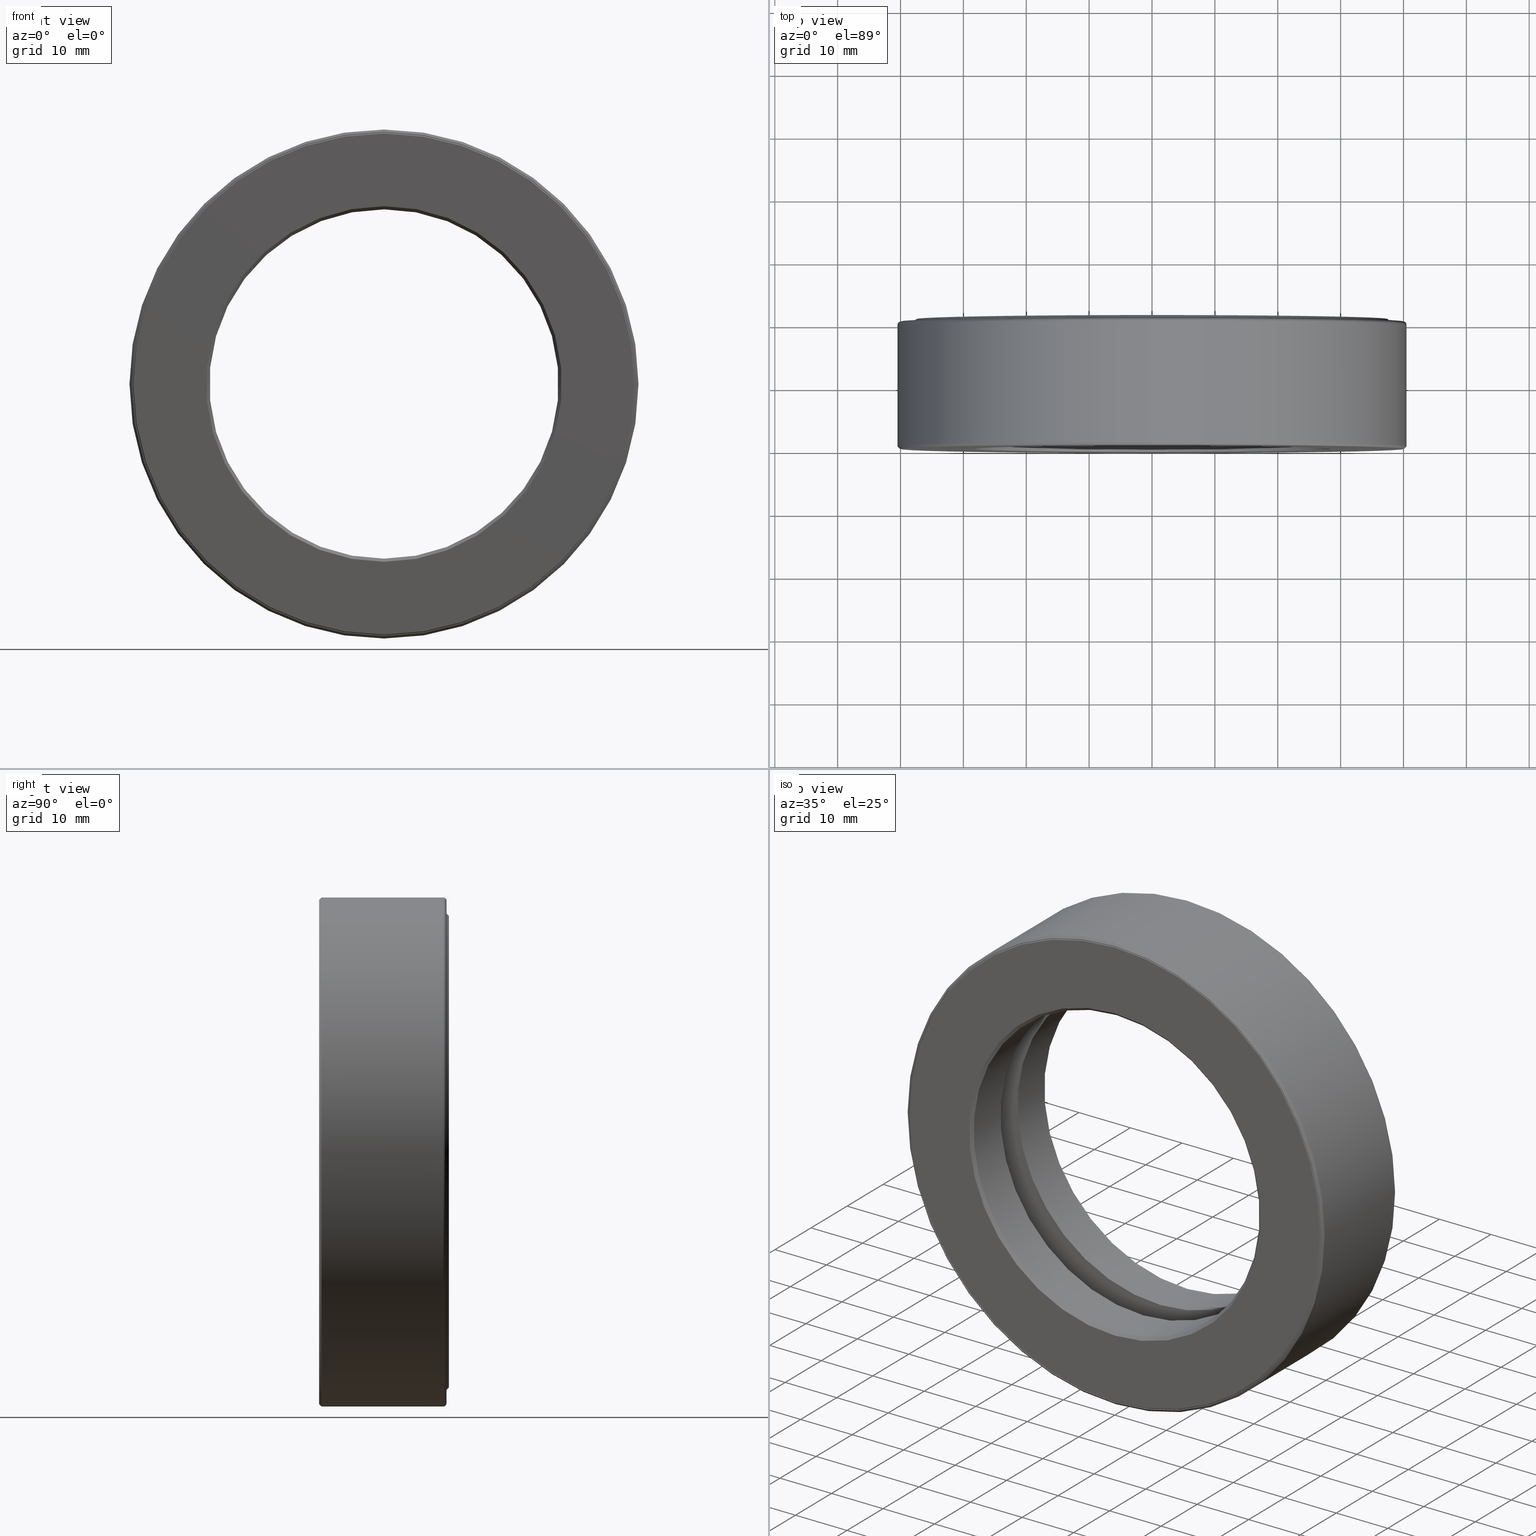
[diagram: canonical four-view strip — front | top / right | iso, engineering-drawing reading convention]
A machine part, canonical four-view strip (front | top / right | iso — engineering-drawing reading convention). The complete STEP part file that produces these views, byte-faithful:
ISO-10303-21;
HEADER;
FILE_DESCRIPTION (( 'STEP AP203' ),
    '1' );
FILE_NAME ('T-100-33.step',
    '2016-06-29T18:27:31',
    ( '' ),
    ( '' ),
    'SwSTEP 2.0',
    'SolidWorks 2016',
    '' );
FILE_SCHEMA (( 'CONFIG_CONTROL_DESIGN' ));
ENDSEC;

DATA;
#1 = DESIGN_CONTEXT ( 'detailed design', #520, 'design' ) ;
#2 = ORIENTED_EDGE ( 'NONE', *, *, #457, .T. ) ;
#3 = CARTESIAN_POINT ( 'NONE',  ( 0.0000000000000000000, 0.4999999999999998300, 1.533500000000000100 ) ) ;
#4 = CARTESIAN_POINT ( 'NONE',  ( 0.0000000000000000000, 0.4062499999999998900, 0.0000000000000000000 ) ) ;
#5 = PERSON_AND_ORGANIZATION_ROLE ( 'creator' ) ;
#6 = VERTEX_POINT ( 'NONE', #525 ) ;
#7 = PLANE ( 'NONE',  #479 ) ;
#8 = CARTESIAN_POINT ( 'NONE',  ( 0.0000000000000000000, 0.3124999999999998900, 1.573749999999999800 ) ) ;
#9 = CARTESIAN_POINT ( 'NONE',  ( 0.0000000000000000000, 0.4999999999999998300, 0.0000000000000000000 ) ) ;
#10 = DIRECTION ( 'NONE',  ( 1.000000000000000000, 0.0000000000000000000, 0.0000000000000000000 ) ) ;
#11 = CYLINDRICAL_SURFACE ( 'NONE', #218, 1.593749999999999600 ) ;
#12 = AXIS2_PLACEMENT_3D ( 'NONE', #358, #177, #501 ) ;
#13 = DIRECTION ( 'NONE',  ( -0.0000000000000000000, 1.000000000000000000, 0.0000000000000000000 ) ) ;
#14 = AXIS2_PLACEMENT_3D ( 'NONE', #556, #278, #326 ) ;
#15 = ORIENTED_EDGE ( 'NONE', *, *, #532, .F. ) ;
#16 = CONICAL_SURFACE ( 'NONE', #375, 1.478749999999999600, 0.7853981633974498300 ) ;
#17 = CARTESIAN_POINT ( 'NONE',  ( 0.0000000000000000000, 0.005000000000000232600, 0.0000000000000000000 ) ) ;
#18 = EDGE_LOOP ( 'NONE', ( #257 ) ) ;
#19 = DIRECTION ( 'NONE',  ( 0.0000000000000000000, 0.0000000000000000000, 1.000000000000000000 ) ) ;
#20 = MANIFOLD_SOLID_BREP ( 'Revolve2[2]', #127 ) ;
#21 = VERTEX_POINT ( 'NONE', #289 ) ;
#22 = LOCAL_TIME ( 14, 27, 31.00000000000000000, #183 ) ;
#23 = ADVANCED_FACE ( 'NONE', ( #291, #188 ), #398, .F. ) ;
#24 = EDGE_LOOP ( 'NONE', ( #269 ) ) ;
#25 = CYLINDRICAL_SURFACE ( 'NONE', #487, 1.093750000000000000 ) ;
#26 = ORIENTED_EDGE ( 'NONE', *, *, #208, .T. ) ;
#27 = AXIS2_PLACEMENT_3D ( 'NONE', #87, #39, #192 ) ;
#28 = CLOSED_SHELL ( 'NONE', ( #174 ) ) ;
#29 = FACE_OUTER_BOUND ( 'NONE', #481, .T. ) ;
#30 = EDGE_LOOP ( 'NONE', ( #361 ) ) ;
#31 = CARTESIAN_POINT ( 'NONE',  ( 0.0000000000000000000, 0.02000000000000046900, 1.093750000000000000 ) ) ;
#32 = ORIENTED_EDGE ( 'NONE', *, *, #457, .F. ) ;
#33 = EDGE_CURVE ( 'NONE', #565, #565, #154, .T. ) ;
#34 = ORIENTED_EDGE ( 'NONE', *, *, #231, .F. ) ;
#35 = DIRECTION ( 'NONE',  ( -0.0000000000000000000, 1.000000000000000000, -0.0000000000000000000 ) ) ;
#36 = AXIS2_PLACEMENT_3D ( 'NONE', #411, #598, #136 ) ;
#37 = PERSON_AND_ORGANIZATION ( #171, #559 ) ;
#38 = ORIENTED_EDGE ( 'NONE', *, *, #423, .T. ) ;
#39 = DIRECTION ( 'NONE',  ( -0.0000000000000000000, 1.000000000000000000, -0.0000000000000000000 ) ) ;
#40 = FACE_OUTER_BOUND ( 'NONE', #224, .T. ) ;
#41 = CARTESIAN_POINT ( 'NONE',  ( 0.0000000000000000000, 0.01499999999999984000, 1.593749999999999300 ) ) ;
#42 = EDGE_LOOP ( 'NONE', ( #164 ) ) ;
#43 = CARTESIAN_POINT ( 'NONE',  ( 0.0000000000000000000, 0.8124999999999998900, 0.0000000000000000000 ) ) ;
#44 = PERSON_AND_ORGANIZATION_ROLE ( 'design_supplier' ) ;
#45 = DATE_AND_TIME ( #112, #373 ) ;
#46 = AXIS2_PLACEMENT_3D ( 'NONE', #439, #304, #444 ) ;
#47 = FACE_OUTER_BOUND ( 'NONE', #305, .T. ) ;
#48 = ADVANCED_FACE ( 'NONE', ( #277, #313 ), #11, .T. ) ;
#49 = CC_DESIGN_APPROVAL ( #120, ( #315 ) ) ;
#50 = ORIENTED_EDGE ( 'NONE', *, *, #85, .T. ) ;
#51 = VERTEX_POINT ( 'NONE', #561 ) ;
#52 = ADVANCED_FACE ( 'NONE', ( ), #509, .T. ) ;
#53 = DIRECTION ( 'NONE',  ( -0.0000000000000000000, 1.000000000000000000, -0.0000000000000000000 ) ) ;
#54 = EDGE_CURVE ( 'NONE', #318, #318, #368, .T. ) ;
#55 = ORIENTED_EDGE ( 'NONE', *, *, #312, .F. ) ;
#56 = SPHERICAL_SURFACE ( 'NONE', #495, 0.1562499999999999700 ) ;
#57 = FACE_OUTER_BOUND ( 'NONE', #527, .T. ) ;
#58 = ADVANCED_FACE ( 'NONE', ( #381, #261 ), #226, .T. ) ;
#59 = DIRECTION ( 'NONE',  ( 0.0000000000000000000, -1.000000000000000000, 0.0000000000000000000 ) ) ;
#60 = COORDINATED_UNIVERSAL_TIME_OFFSET ( 5, 0, .BEHIND. ) ;
#61 = DIRECTION ( 'NONE',  ( -0.0000000000000000000, 1.000000000000000000, -0.0000000000000000000 ) ) ;
#62 = CIRCLE ( 'NONE', #168, 1.513749999999999900 ) ;
#63 = ADVANCED_FACE ( 'NONE', ( #57, #116 ), #251, .F. ) ;
#64 = DIRECTION ( 'NONE',  ( 0.0000000000000000000, 0.0000000000000000000, -1.000000000000000000 ) ) ;
#65 = EDGE_CURVE ( 'NONE', #589, #589, #472, .T. ) ;
#66 = FACE_OUTER_BOUND ( 'NONE', #205, .T. ) ;
#67 = PRODUCT_DEFINITION_SHAPE ( 'NONE', 'NONE',  #356 ) ;
#68 = CARTESIAN_POINT ( 'NONE',  ( 0.0000000000000000000, 0.7924999999999994300, 0.0000000000000000000 ) ) ;
#69 = MANIFOLD_SOLID_BREP ( 'Revolve2[1]', #555 ) ;
#70 = PERSON_AND_ORGANIZATION ( #171, #559 ) ;
#71 = AXIS2_PLACEMENT_3D ( 'NONE', #460, #181, #82 ) ;
#72 = EDGE_LOOP ( 'NONE', ( #557 ) ) ;
#73 = CIRCLE ( 'NONE', #344, 1.566749999999999900 ) ;
#74 = CARTESIAN_POINT ( 'NONE',  ( 0.0000000000000000000, -6.722907171908147400E-017, 1.568749999999999400 ) ) ;
#75 = EDGE_LOOP ( 'NONE', ( #195 ) ) ;
#76 = EDGE_CURVE ( 'NONE', #156, #156, #242, .T. ) ;
#77 = PERSON_AND_ORGANIZATION ( #171, #559 ) ;
#78 = ORIENTED_EDGE ( 'NONE', *, *, #491, .F. ) ;
#79 = DIRECTION ( 'NONE',  ( 0.0000000000000000000, 0.0000000000000000000, 1.000000000000000000 ) ) ;
#80 = DIRECTION ( 'NONE',  ( -0.0000000000000000000, 1.000000000000000000, -0.0000000000000000000 ) ) ;
#81 = DIRECTION ( 'NONE',  ( 0.0000000000000000000, 0.0000000000000000000, 1.000000000000000000 ) ) ;
#82 = DIRECTION ( 'NONE',  ( 0.0000000000000000000, 0.0000000000000000000, 1.000000000000000000 ) ) ;
#83 = CARTESIAN_POINT ( 'NONE',  ( 0.0000000000000000000, 0.0000000000000000000, 0.0000000000000000000 ) ) ;
#84 = FACE_OUTER_BOUND ( 'NONE', #470, .T. ) ;
#85 = EDGE_CURVE ( 'NONE', #90, #90, #351, .T. ) ;
#86 = PLANE ( 'NONE',  #597 ) ;
#87 = CARTESIAN_POINT ( 'NONE',  ( 0.0000000000000000000, 0.7774999999999999700, 0.0000000000000000000 ) ) ;
#88 = MANIFOLD_SOLID_BREP ( 'BALLS[2]', #28 ) ;
#89 = EDGE_LOOP ( 'NONE', ( #546 ) ) ;
#90 = VERTEX_POINT ( 'NONE', #330 ) ;
#91 = CC_DESIGN_DATE_AND_TIME_ASSIGNMENT ( #385, #293, ( #356 ) ) ;
#92 = DIRECTION ( 'NONE',  ( -0.0000000000000000000, 1.000000000000000000, -0.0000000000000000000 ) ) ;
#93 = ADVANCED_FACE ( 'NONE', ( #531, #397 ), #189, .T. ) ;
#94 = DIRECTION ( 'NONE',  ( -0.0000000000000000000, 1.000000000000000000, -0.0000000000000000000 ) ) ;
#95 = FACE_OUTER_BOUND ( 'NONE', #259, .T. ) ;
#96 = APPLICATION_PROTOCOL_DEFINITION ( 'international standard', 'config_control_design', 1994, #155 ) ;
#97 = CARTESIAN_POINT ( 'NONE',  ( 0.0000000000000000000, 0.8124999999999998900, 1.478749999999999600 ) ) ;
#98 = CARTESIAN_POINT ( 'NONE',  ( 0.0000000000000000000, 0.3124999999999998900, 0.0000000000000000000 ) ) ;
#99 = VERTEX_POINT ( 'NONE', #380 ) ;
#100 = DIRECTION ( 'NONE',  ( -1.000000000000000000, 0.0000000000000000000, 3.491481338843131400E-015 ) ) ;
#101 = EDGE_CURVE ( 'NONE', #401, #401, #62, .T. ) ;
#102 = SECURITY_CLASSIFICATION_LEVEL ( 'unclassified' ) ;
#103 = CARTESIAN_POINT ( 'NONE',  ( 0.0000000000000000000, 0.7924999999999994300, 0.0000000000000000000 ) ) ;
#104 = ORIENTED_EDGE ( 'NONE', *, *, #33, .F. ) ;
#105 =( CONVERSION_BASED_UNIT ( 'INCH', #229 ) LENGTH_UNIT ( ) NAMED_UNIT ( #123 ) );
#106 = CARTESIAN_POINT ( 'NONE',  ( -2.431527317371448200E-032, -3.361453585954073700E-017, 0.0000000000000000000 ) ) ;
#107 = CONICAL_SURFACE ( 'NONE', #233, 1.093750000000000000, 0.7853981633974449500 ) ;
#108 = EDGE_LOOP ( 'NONE', ( #186 ) ) ;
#109 = CARTESIAN_POINT ( 'NONE',  ( 0.0000000000000000000, -6.781474164570169800E-017, 0.0000000000000000000 ) ) ;
#110 = CYLINDRICAL_SURFACE ( 'NONE', #386, 1.093750000000000200 ) ;
#111 = DIRECTION ( 'NONE',  ( 0.0000000000000000000, -1.000000000000000000, 0.0000000000000000000 ) ) ;
#112 = CALENDAR_DATE ( 2016, 29, 6 ) ;
#113 = DIRECTION ( 'NONE',  ( 0.0000000000000000000, -0.0000000000000000000, -1.000000000000000000 ) ) ;
#114 = FACE_OUTER_BOUND ( 'NONE', #534, .T. ) ;
#115 = DIRECTION ( 'NONE',  ( -0.0000000000000000000, 1.000000000000000000, -0.0000000000000000000 ) ) ;
#116 = FACE_OUTER_BOUND ( 'NONE', #523, .T. ) ;
#117 = DIRECTION ( 'NONE',  ( 0.0000000000000000000, 0.0000000000000000000, 1.000000000000000000 ) ) ;
#118 = VERTEX_POINT ( 'NONE', #3 ) ;
#119 = DIRECTION ( 'NONE',  ( 0.0000000000000000000, 0.0000000000000000000, 1.000000000000000000 ) ) ;
#120 = APPROVAL ( #146, 'UNSPECIFIED' ) ;
#121 = ADVANCED_FACE ( 'NONE', ( #498, #217 ), #7, .F. ) ;
#122 = EDGE_LOOP ( 'NONE', ( #211 ) ) ;
#123 = DIMENSIONAL_EXPONENTS ( 1.000000000000000000, 0.0000000000000000000, 0.0000000000000000000, 0.0000000000000000000, 0.0000000000000000000, 0.0000000000000000000, 0.0000000000000000000 ) ;
#124 = AXIS2_PLACEMENT_3D ( 'NONE', #483, #100, #379 ) ;
#125 = FACE_OUTER_BOUND ( 'NONE', #89, .T. ) ;
#126 = APPROVAL ( #333, 'UNSPECIFIED' ) ;
#127 = CLOSED_SHELL ( 'NONE', ( #345, #63, #390, #578, #348, #93, #475, #434 ) ) ;
#128 = FACE_OUTER_BOUND ( 'NONE', #396, .T. ) ;
#129 = AXIS2_PLACEMENT_3D ( 'NONE', #68, #447, #306 ) ;
#130 = EDGE_LOOP ( 'NONE', ( #451 ) ) ;
#131 = CARTESIAN_POINT ( 'NONE',  ( 0.0000000000000000000, 0.7775000000000000800, 1.573749999999999800 ) ) ;
#132 = FACE_BOUND ( 'NONE', #324, .T. ) ;
#133 = AXIS2_PLACEMENT_3D ( 'NONE', #602, #92, #337 ) ;
#134 = FACE_OUTER_BOUND ( 'NONE', #548, .T. ) ;
#135 = AXIS2_PLACEMENT_3D ( 'NONE', #106, #13, #300 ) ;
#136 = DIRECTION ( 'NONE',  ( 0.0000000000000000000, 0.0000000000000000000, 1.000000000000000000 ) ) ;
#137 = DIRECTION ( 'NONE',  ( 6.982962677686262800E-015, -0.0000000000000000000, 1.000000000000000000 ) ) ;
#138 = LOCAL_TIME ( 14, 27, 31.00000000000000000, #149 ) ;
#139 = DIRECTION ( 'NONE',  ( 0.0000000000000000000, 0.0000000000000000000, 1.000000000000000000 ) ) ;
#140 = CLOSED_SHELL ( 'NONE', ( #249 ) ) ;
#141 = FACE_OUTER_BOUND ( 'NONE', #549, .T. ) ;
#142 = CARTESIAN_POINT ( 'NONE',  ( 0.0000000000000000000, 0.7775000000000000800, 0.0000000000000000000 ) ) ;
#143 = ORIENTED_EDGE ( 'NONE', *, *, #237, .F. ) ;
#144 = CARTESIAN_POINT ( 'NONE',  ( 0.0000000000000000000, 0.4999999999999998300, 1.093750000000000200 ) ) ;
#145 = PLANE ( 'NONE',  #360 ) ;
#146 = APPROVAL_STATUS ( 'not_yet_approved' ) ;
#147 = VERTEX_POINT ( 'NONE', #477 ) ;
#148 = DIRECTION ( 'NONE',  ( -0.0000000000000000000, 1.000000000000000000, 0.0000000000000000000 ) ) ;
#149 = COORDINATED_UNIVERSAL_TIME_OFFSET ( 5, 0, .BEHIND. ) ;
#150 = CLOSED_SHELL ( 'NONE', ( #331 ) ) ;
#151 = SECURITY_CLASSIFICATION ( '', '', #102 ) ;
#152 = FACE_OUTER_BOUND ( 'NONE', #433, .T. ) ;
#153 = DIRECTION ( 'NONE',  ( -0.0000000000000000000, 1.000000000000000000, -0.0000000000000000000 ) ) ;
#154 = CIRCLE ( 'NONE', #590, 1.566749999999999900 ) ;
#155 = APPLICATION_CONTEXT ( 'configuration controlled 3d designs of mechanical parts and assemblies' ) ;
#156 = VERTEX_POINT ( 'NONE', #41 ) ;
#157 = DIRECTION ( 'NONE',  ( -0.0000000000000000000, 1.000000000000000000, -0.0000000000000000000 ) ) ;
#158 = AXIS2_PLACEMENT_3D ( 'NONE', #292, #384, #435 ) ;
#159 = CARTESIAN_POINT ( 'NONE',  ( 0.0000000000000000000, 0.7975000000000002100, 0.0000000000000000000 ) ) ;
#160 = MANIFOLD_SOLID_BREP ( 'BALLS[1]', #140 ) ;
#161 = CYLINDRICAL_SURFACE ( 'NONE', #163, 1.566749999999999900 ) ;
#162 = DIRECTION ( 'NONE',  ( 0.0000000000000000000, 0.0000000000000000000, 1.000000000000000000 ) ) ;
#163 = AXIS2_PLACEMENT_3D ( 'NONE', #258, #494, #262 ) ;
#164 = ORIENTED_EDGE ( 'NONE', *, *, #268, .T. ) ;
#165 = DIRECTION ( 'NONE',  ( -0.0000000000000000000, 1.000000000000000000, -0.0000000000000000000 ) ) ;
#166 = DIRECTION ( 'NONE',  ( 0.0000000000000000000, -1.000000000000000000, 0.0000000000000000000 ) ) ;
#167 = PLANE ( 'NONE',  #263 ) ;
#168 = AXIS2_PLACEMENT_3D ( 'NONE', #243, #94, #239 ) ;
#169 = ORIENTED_EDGE ( 'NONE', *, *, #33, .T. ) ;
#170 = DIRECTION ( 'NONE',  ( 0.0000000000000000000, 0.0000000000000000000, 1.000000000000000000 ) ) ;
#171 = PERSON ( 'UNSPECIFIED', 'UNSPECIFIED', 'UNSPECIFIED', ('UNSPECIFIED'), ('UNSPECIFIED'), ('UNSPECIFIED') ) ;
#172 = APPROVAL_DATE_TIME ( #394, #120 ) ;
#173 = ORIENTED_EDGE ( 'NONE', *, *, #395, .F. ) ;
#174 = ADVANCED_FACE ( 'NONE', ( ), #280, .T. ) ;
#175 = FACE_BOUND ( 'NONE', #506, .T. ) ;
#176 = EDGE_LOOP ( 'NONE', ( #143 ) ) ;
#177 = DIRECTION ( 'NONE',  ( -0.0000000000000000000, 1.000000000000000000, -0.0000000000000000000 ) ) ;
#178 = CALENDAR_DATE ( 2016, 29, 6 ) ;
#179 = FACE_OUTER_BOUND ( 'NONE', #18, .T. ) ;
#180 = EDGE_LOOP ( 'NONE', ( #55 ) ) ;
#181 = DIRECTION ( 'NONE',  ( -0.0000000000000000000, 1.000000000000000000, -0.0000000000000000000 ) ) ;
#182 = CIRCLE ( 'NONE', #12, 1.113750000000000500 ) ;
#183 = COORDINATED_UNIVERSAL_TIME_OFFSET ( 5, 0, .BEHIND. ) ;
#184 = EDGE_LOOP ( 'NONE', ( #255 ) ) ;
#185 = AXIS2_PLACEMENT_3D ( 'NONE', #109, #576, #252 ) ;
#186 = ORIENTED_EDGE ( 'NONE', *, *, #524, .T. ) ;
#187 = FACE_OUTER_BOUND ( 'NONE', #500, .T. ) ;
#188 = FACE_OUTER_BOUND ( 'NONE', #275, .T. ) ;
#189 = PLANE ( 'NONE',  #363 ) ;
#190 = AXIS2_PLACEMENT_3D ( 'NONE', #496, #541, #210 ) ;
#191 = CARTESIAN_POINT ( 'NONE',  ( 0.0000000000000000000, 0.4999999999999998300, 1.566749999999999900 ) ) ;
#192 = DIRECTION ( 'NONE',  ( 0.0000000000000000000, 0.0000000000000000000, 1.000000000000000000 ) ) ;
#193 = COORDINATED_UNIVERSAL_TIME_OFFSET ( 5, 0, .BEHIND. ) ;
#194 = CARTESIAN_POINT ( 'NONE',  ( 1.408500000000000100, 0.4062499999999997800, -9.835502931521106100E-015 ) ) ;
#195 = ORIENTED_EDGE ( 'NONE', *, *, #268, .F. ) ;
#196 = CIRCLE ( 'NONE', #129, 1.093750000000000200 ) ;
#197 = DIRECTION ( 'NONE',  ( 0.0000000000000000000, -0.0000000000000000000, -1.000000000000000000 ) ) ;
#198 = DIRECTION ( 'NONE',  ( 0.0000000000000000000, 0.0000000000000000000, 1.000000000000000000 ) ) ;
#199 = VERTEX_POINT ( 'NONE', #266 ) ;
#200 = APPLICATION_PROTOCOL_DEFINITION ( 'international standard', 'config_control_design', 1994, #520 ) ;
#201 = ADVANCED_FACE ( 'NONE', ( #537, #40 ), #570, .T. ) ;
#202 = DIRECTION ( 'NONE',  ( 0.0000000000000000000, 0.0000000000000000000, 1.000000000000000000 ) ) ;
#203 = EDGE_LOOP ( 'NONE', ( #265 ) ) ;
#204 = CIRCLE ( 'NONE', #185, 1.573749999999999800 ) ;
#205 = EDGE_LOOP ( 'NONE', ( #173 ) ) ;
#206 = ADVANCED_FACE ( 'NONE', ( #478, #179 ), #471, .F. ) ;
#207 = PLANE ( 'NONE',  #135 ) ;
#208 = EDGE_CURVE ( 'NONE', #245, #245, #550, .T. ) ;
#209 = PERSON_AND_ORGANIZATION ( #171, #559 ) ;
#210 = DIRECTION ( 'NONE',  ( 0.0000000000000000000, 0.0000000000000000000, 1.000000000000000000 ) ) ;
#211 = ORIENTED_EDGE ( 'NONE', *, *, #453, .F. ) ;
#212 = DIRECTION ( 'NONE',  ( 0.0000000000000000000, -1.000000000000000000, 0.0000000000000000000 ) ) ;
#213 = FACE_OUTER_BOUND ( 'NONE', #404, .T. ) ;
#214 = DIRECTION ( 'NONE',  ( -0.0000000000000000000, 1.000000000000000000, 0.0000000000000000000 ) ) ;
#215 = CC_DESIGN_APPROVAL ( #452, ( #356 ) ) ;
#216 = ADVANCED_FACE ( 'NONE', ( #586, #187 ), #145, .F. ) ;
#217 = FACE_BOUND ( 'NONE', #420, .T. ) ;
#218 = AXIS2_PLACEMENT_3D ( 'NONE', #83, #462, #364 ) ;
#219 = CARTESIAN_POINT ( 'NONE',  ( 0.0000000000000000000, 0.7975000000000002100, 1.513749999999999900 ) ) ;
#220 = EDGE_LOOP ( 'NONE', ( #539 ) ) ;
#221 = CARTESIAN_POINT ( 'NONE',  ( 0.0000000000000000000, 0.3124999999999998900, 0.0000000000000000000 ) ) ;
#222 = VERTEX_POINT ( 'NONE', #522 ) ;
#223 = PERSON_AND_ORGANIZATION ( #171, #559 ) ;
#224 = EDGE_LOOP ( 'NONE', ( #2 ) ) ;
#225 = SPHERICAL_SURFACE ( 'NONE', #124, 0.1562499999999999700 ) ;
#226 = CONICAL_SURFACE ( 'NONE', #253, 1.568749999999999400, 0.7853981633974812500 ) ;
#227 = CARTESIAN_POINT ( 'NONE',  ( -1.475325439728165900E-014, 0.4062499999999997800, -1.408500000000000100 ) ) ;
#228 = DIRECTION ( 'NONE',  ( 0.0000000000000000000, -0.0000000000000000000, -1.000000000000000000 ) ) ;
#229 = LENGTH_MEASURE_WITH_UNIT ( LENGTH_MEASURE( 0.02539999999999999900 ), #241 );
#230 = CARTESIAN_POINT ( 'NONE',  ( 0.0000000000000000000, -6.722907171908147400E-017, 0.0000000000000000000 ) ) ;
#231 = EDGE_CURVE ( 'NONE', #393, #393, #366, .T. ) ;
#232 = CARTESIAN_POINT ( 'NONE',  ( 0.0000000000000000000, -6.829619984160658000E-017, 0.0000000000000000000 ) ) ;
#233 = AXIS2_PLACEMENT_3D ( 'NONE', #347, #59, #391 ) ;
#234 = CARTESIAN_POINT ( 'NONE',  ( 0.0000000000000000000, 0.0000000000000000000, 0.0000000000000000000 ) ) ;
#235 = FACE_OUTER_BOUND ( 'NONE', #593, .T. ) ;
#236 = CARTESIAN_POINT ( 'NONE',  ( 0.0000000000000000000, 0.3125000000000000000, 1.283499999999999900 ) ) ;
#237 = EDGE_CURVE ( 'NONE', #222, #222, #311, .T. ) ;
#238 = ORIENTED_EDGE ( 'NONE', *, *, #319, .T. ) ;
#239 = DIRECTION ( 'NONE',  ( 0.0000000000000000000, 0.0000000000000000000, 1.000000000000000000 ) ) ;
#240 = FACE_OUTER_BOUND ( 'NONE', #220, .T. ) ;
#241 =( LENGTH_UNIT ( ) NAMED_UNIT ( * ) SI_UNIT ( $, .METRE. ) );
#242 = CIRCLE ( 'NONE', #133, 1.593749999999999300 ) ;
#243 = CARTESIAN_POINT ( 'NONE',  ( 0.0000000000000000000, 0.7775000000000000800, 0.0000000000000000000 ) ) ;
#244 =( NAMED_UNIT ( * ) SI_UNIT ( $, .STERADIAN. ) SOLID_ANGLE_UNIT ( ) );
#245 = VERTEX_POINT ( 'NONE', #144 ) ;
#246 = PRODUCT ( 'T-100-33', 'T-100-33', '', ( #338 ) ) ;
#247 = CC_DESIGN_APPROVAL ( #126, ( #151 ) ) ;
#248 = FACE_OUTER_BOUND ( 'NONE', #514, .T. ) ;
#249 = ADVANCED_FACE ( 'NONE', ( ), #225, .T. ) ;
#250 = PERSON_AND_ORGANIZATION_ROLE ( 'design_owner' ) ;
#251 = TOROIDAL_SURFACE ( 'NONE', #558, 1.408500000000000100, 0.1562500000000001400 ) ;
#252 = DIRECTION ( 'NONE',  ( 0.0000000000000000000, 0.0000000000000000000, 1.000000000000000000 ) ) ;
#253 = AXIS2_PLACEMENT_3D ( 'NONE', #230, #456, #81 ) ;
#254 = DIRECTION ( 'NONE',  ( 1.000000000000000000, 0.0000000000000000000, 0.0000000000000000000 ) ) ;
#255 = ORIENTED_EDGE ( 'NONE', *, *, #510, .F. ) ;
#256 = CIRCLE ( 'NONE', #585, 1.113750000000000500 ) ;
#257 = ORIENTED_EDGE ( 'NONE', *, *, #65, .T. ) ;
#258 = CARTESIAN_POINT ( 'NONE',  ( 0.0000000000000000000, 0.0000000000000000000, 0.0000000000000000000 ) ) ;
#259 = EDGE_LOOP ( 'NONE', ( #572 ) ) ;
#260 = FACE_OUTER_BOUND ( 'NONE', #416, .T. ) ;
#261 = FACE_BOUND ( 'NONE', #296, .T. ) ;
#262 = DIRECTION ( 'NONE',  ( 0.0000000000000000000, 0.0000000000000000000, 1.000000000000000000 ) ) ;
#263 = AXIS2_PLACEMENT_3D ( 'NONE', #308, #166, #113 ) ;
#264 = VERTEX_POINT ( 'NONE', #131 ) ;
#265 = ORIENTED_EDGE ( 'NONE', *, *, #65, .F. ) ;
#266 = CARTESIAN_POINT ( 'NONE',  ( 0.0000000000000000000, -6.781474164570169800E-017, 1.573749999999999800 ) ) ;
#267 = FACE_BOUND ( 'NONE', #600, .T. ) ;
#268 = EDGE_CURVE ( 'NONE', #51, #51, #563, .T. ) ;
#269 = ORIENTED_EDGE ( 'NONE', *, *, #510, .T. ) ;
#270 = VERTEX_POINT ( 'NONE', #8 ) ;
#271 = COORDINATED_UNIVERSAL_TIME_OFFSET ( 5, 0, .BEHIND. ) ;
#272 = EDGE_LOOP ( 'NONE', ( #562 ) ) ;
#273 = DIRECTION ( 'NONE',  ( -0.0000000000000000000, 1.000000000000000000, -0.0000000000000000000 ) ) ;
#274 = DIRECTION ( 'NONE',  ( 1.000000000000000000, 0.0000000000000000000, -1.047444401652939400E-014 ) ) ;
#275 = EDGE_LOOP ( 'NONE', ( #343 ) ) ;
#276 = FACE_BOUND ( 'NONE', #507, .T. ) ;
#277 = FACE_OUTER_BOUND ( 'NONE', #349, .T. ) ;
#278 = DIRECTION ( 'NONE',  ( -0.0000000000000000000, 1.000000000000000000, -0.0000000000000000000 ) ) ;
#279 = ORIENTED_EDGE ( 'NONE', *, *, #312, .T. ) ;
#280 = SPHERICAL_SURFACE ( 'NONE', #543, 0.1562499999999999700 ) ;
#281 = DIRECTION ( 'NONE',  ( -0.0000000000000000000, 1.000000000000000000, -0.0000000000000000000 ) ) ;
#282 = ORIENTED_EDGE ( 'NONE', *, *, #532, .T. ) ;
#283 = CC_DESIGN_SECURITY_CLASSIFICATION ( #151, ( #315 ) ) ;
#284 = CARTESIAN_POINT ( 'NONE',  ( 0.0000000000000000000, 0.0000000000000000000, 1.113750000000000500 ) ) ;
#285 = DIRECTION ( 'NONE',  ( 0.0000000000000000000, -1.000000000000000000, 0.0000000000000000000 ) ) ;
#286 = ORIENTED_EDGE ( 'NONE', *, *, #101, .F. ) ;
#287 = DIRECTION ( 'NONE',  ( 0.0000000000000000000, 0.0000000000000000000, 1.000000000000000000 ) ) ;
#288 = CIRCLE ( 'NONE', #427, 1.513749999999999900 ) ;
#289 = CARTESIAN_POINT ( 'NONE',  ( 0.0000000000000000000, 0.7774999999999999700, 1.593750000000000000 ) ) ;
#290 = PLANE ( 'NONE',  #583 ) ;
#291 = FACE_OUTER_BOUND ( 'NONE', #180, .T. ) ;
#292 = CARTESIAN_POINT ( 'NONE',  ( 0.0000000000000000000, 0.3125000000000000000, 0.0000000000000000000 ) ) ;
#293 = DATE_TIME_ROLE ( 'creation_date' ) ;
#294 = APPROVAL_PERSON_ORGANIZATION ( #521, #120, #564 ) ;
#295 = CARTESIAN_POINT ( 'NONE',  ( 0.0000000000000000000, 0.4999999999999998300, 0.0000000000000000000 ) ) ;
#296 = EDGE_LOOP ( 'NONE', ( #38 ) ) ;
#297 = CIRCLE ( 'NONE', #497, 1.573749999999999800 ) ;
#298 = DIRECTION ( 'NONE',  ( 0.0000000000000000000, 0.0000000000000000000, 1.000000000000000000 ) ) ;
#299 = ORIENTED_EDGE ( 'NONE', *, *, #208, .F. ) ;
#300 = DIRECTION ( 'NONE',  ( 0.0000000000000000000, 0.0000000000000000000, 1.000000000000000000 ) ) ;
#301 = EDGE_CURVE ( 'NONE', #519, #519, #73, .T. ) ;
#302 = DIRECTION ( 'NONE',  ( -0.0000000000000000000, 1.000000000000000000, -0.0000000000000000000 ) ) ;
#303 = CALENDAR_DATE ( 2016, 29, 6 ) ;
#304 = DIRECTION ( 'NONE',  ( -0.0000000000000000000, 1.000000000000000000, -0.0000000000000000000 ) ) ;
#305 = EDGE_LOOP ( 'NONE', ( #78 ) ) ;
#306 = DIRECTION ( 'NONE',  ( 0.0000000000000000000, 0.0000000000000000000, 1.000000000000000000 ) ) ;
#307 = EDGE_LOOP ( 'NONE', ( #410 ) ) ;
#308 = CARTESIAN_POINT ( 'NONE',  ( 0.0000000000000000000, 0.4999999999999998300, 0.0000000000000000000 ) ) ;
#309 = LOCAL_TIME ( 14, 27, 31.00000000000000000, #193 ) ;
#310 = EDGE_LOOP ( 'NONE', ( #402 ) ) ;
#311 = CIRCLE ( 'NONE', #403, 1.573750000000000200 ) ;
#312 = EDGE_CURVE ( 'NONE', #199, #199, #204, .T. ) ;
#313 = FACE_OUTER_BOUND ( 'NONE', #72, .T. ) ;
#314 = DIRECTION ( 'NONE',  ( -0.0000000000000000000, 1.000000000000000000, -0.0000000000000000000 ) ) ;
#315 = PRODUCT_DEFINITION_FORMATION_WITH_SPECIFIED_SOURCE ( 'ANY', '', #246, .NOT_KNOWN. ) ;
#316 = ORIENTED_EDGE ( 'NONE', *, *, #599, .T. ) ;
#317 = DIRECTION ( 'NONE',  ( -0.0000000000000000000, 1.000000000000000000, -0.0000000000000000000 ) ) ;
#318 = VERTEX_POINT ( 'NONE', #31 ) ;
#319 = EDGE_CURVE ( 'NONE', #415, #415, #288, .T. ) ;
#320 = DIRECTION ( 'NONE',  ( -0.0000000000000000000, 1.000000000000000000, -0.0000000000000000000 ) ) ;
#321 = CALENDAR_DATE ( 2016, 29, 6 ) ;
#322 = ORIENTED_EDGE ( 'NONE', *, *, #453, .T. ) ;
#323 = AXIS2_PLACEMENT_3D ( 'NONE', #352, #61, #117 ) ;
#324 = EDGE_LOOP ( 'NONE', ( #50 ) ) ;
#325 = AXIS2_PLACEMENT_3D ( 'NONE', #579, #214, #170 ) ;
#326 = DIRECTION ( 'NONE',  ( 0.0000000000000000000, 0.0000000000000000000, 1.000000000000000000 ) ) ;
#327 = DATE_TIME_ROLE ( 'classification_date' ) ;
#328 = DATE_AND_TIME ( #425, #309 ) ;
#329 = AXIS2_PLACEMENT_3D ( 'NONE', #227, #274, #596 ) ;
#330 = CARTESIAN_POINT ( 'NONE',  ( 0.0000000000000000000, -6.829619984160658000E-017, 1.578749999999999900 ) ) ;
#331 = ADVANCED_FACE ( 'NONE', ( ), #56, .T. ) ;
#332 = CLOSED_SHELL ( 'NONE', ( #52 ) ) ;
#333 = APPROVAL_STATUS ( 'not_yet_approved' ) ;
#334 = FACE_OUTER_BOUND ( 'NONE', #42, .T. ) ;
#335 = CARTESIAN_POINT ( 'NONE',  ( 0.0000000000000000000, -6.829619984160658000E-017, 0.0000000000000000000 ) ) ;
#336 = PERSON_AND_ORGANIZATION_ROLE ( 'classification_officer' ) ;
#337 = DIRECTION ( 'NONE',  ( 0.0000000000000000000, 0.0000000000000000000, 1.000000000000000000 ) ) ;
#338 = MECHANICAL_CONTEXT ( 'NONE', #155, 'mechanical' ) ;
#339 = ADVANCED_FACE ( 'NONE', ( #84, #418 ), #207, .F. ) ;
#340 = DIRECTION ( 'NONE',  ( 0.0000000000000000000, -1.000000000000000000, 0.0000000000000000000 ) ) ;
#341 = CARTESIAN_POINT ( 'NONE',  ( 0.0000000000000000000, 0.3124999999999998900, 1.533500000000000100 ) ) ;
#342 = DIRECTION ( 'NONE',  ( 0.0000000000000000000, -0.0000000000000000000, -1.000000000000000000 ) ) ;
#343 = ORIENTED_EDGE ( 'NONE', *, *, #237, .T. ) ;
#344 = AXIS2_PLACEMENT_3D ( 'NONE', #295, #153, #298 ) ;
#345 = ADVANCED_FACE ( 'NONE', ( #175, #405 ), #290, .T. ) ;
#346 = DIRECTION ( 'NONE',  ( -0.0000000000000000000, 1.000000000000000000, -0.0000000000000000000 ) ) ;
#347 = CARTESIAN_POINT ( 'NONE',  ( 0.0000000000000000000, 0.02000000000000046900, 0.0000000000000000000 ) ) ;
#348 = ADVANCED_FACE ( 'NONE', ( #152, #455 ), #443, .F. ) ;
#349 = EDGE_LOOP ( 'NONE', ( #32 ) ) ;
#350 = CARTESIAN_POINT ( 'NONE',  ( 0.0000000000000000000, 0.4999999999999998300, 0.0000000000000000000 ) ) ;
#351 = CIRCLE ( 'NONE', #449, 1.578749999999999900 ) ;
#352 = CARTESIAN_POINT ( 'NONE',  ( 0.0000000000000000000, -6.722907171908147400E-017, 0.0000000000000000000 ) ) ;
#353 = DIRECTION ( 'NONE',  ( -0.0000000000000000000, 1.000000000000000000, -0.0000000000000000000 ) ) ;
#354 = EDGE_CURVE ( 'NONE', #264, #264, #297, .T. ) ;
#355 = ORIENTED_EDGE ( 'NONE', *, *, #301, .F. ) ;
#356 = PRODUCT_DEFINITION ( 'UNKNOWN', '', #315, #1 ) ;
#357 = CIRCLE ( 'NONE', #36, 1.533500000000000100 ) ;
#358 = CARTESIAN_POINT ( 'NONE',  ( 0.0000000000000000000, 0.0000000000000000000, 0.0000000000000000000 ) ) ;
#359 = CYLINDRICAL_SURFACE ( 'NONE', #408, 1.513749999999999900 ) ;
#360 = AXIS2_PLACEMENT_3D ( 'NONE', #98, #111, #573 ) ;
#361 = ORIENTED_EDGE ( 'NONE', *, *, #354, .F. ) ;
#362 = DIRECTION ( 'NONE',  ( 0.0000000000000000000, 0.0000000000000000000, 1.000000000000000000 ) ) ;
#363 = AXIS2_PLACEMENT_3D ( 'NONE', #43, #374, #287 ) ;
#364 = DIRECTION ( 'NONE',  ( 0.0000000000000000000, 0.0000000000000000000, 1.000000000000000000 ) ) ;
#365 = CC_DESIGN_PERSON_AND_ORGANIZATION_ASSIGNMENT ( #484, #5, ( #315 ) ) ;
#366 = CIRCLE ( 'NONE', #392, 1.478749999999999600 ) ;
#367 = DIRECTION ( 'NONE',  ( 0.0000000000000000000, 0.0000000000000000000, 1.000000000000000000 ) ) ;
#368 = CIRCLE ( 'NONE', #371, 1.093750000000000000 ) ;
#369 = DIRECTION ( 'NONE',  ( -1.000000000000000000, 0.0000000000000000000, 6.982962677686262800E-015 ) ) ;
#370 = FACE_BOUND ( 'NONE', #75, .T. ) ;
#371 = AXIS2_PLACEMENT_3D ( 'NONE', #378, #281, #424 ) ;
#372 = CARTESIAN_POINT ( 'NONE',  ( 0.0000000000000000000, 0.4062499999999998900, 0.0000000000000000000 ) ) ;
#373 = LOCAL_TIME ( 14, 27, 31.00000000000000000, #60 ) ;
#374 = DIRECTION ( 'NONE',  ( -0.0000000000000000000, 1.000000000000000000, 0.0000000000000000000 ) ) ;
#375 = AXIS2_PLACEMENT_3D ( 'NONE', #499, #212, #64 ) ;
#376 = ORIENTED_EDGE ( 'NONE', *, *, #101, .T. ) ;
#377 = CIRCLE ( 'NONE', #71, 1.573749999999999800 ) ;
#378 = CARTESIAN_POINT ( 'NONE',  ( 0.0000000000000000000, 0.02000000000000046900, 0.0000000000000000000 ) ) ;
#379 = DIRECTION ( 'NONE',  ( -3.491481338843131400E-015, 0.0000000000000000000, -1.000000000000000000 ) ) ;
#380 = CARTESIAN_POINT ( 'NONE',  ( 0.0000000000000000000, 0.4999999999999998300, 1.283499999999999900 ) ) ;
#381 = FACE_OUTER_BOUND ( 'NONE', #176, .T. ) ;
#382 = ADVANCED_FACE ( 'NONE', ( #95, #334 ), #25, .F. ) ;
#383 = VERTEX_POINT ( 'NONE', #341 ) ;
#384 = DIRECTION ( 'NONE',  ( -0.0000000000000000000, 1.000000000000000000, -0.0000000000000000000 ) ) ;
#385 = DATE_AND_TIME ( #178, #138 ) ;
#386 = AXIS2_PLACEMENT_3D ( 'NONE', #234, #273, #367 ) ;
#387 = CARTESIAN_POINT ( 'NONE',  ( 0.0000000000000000000, 0.8124999999999998900, 0.0000000000000000000 ) ) ;
#388 = ORIENTED_EDGE ( 'NONE', *, *, #491, .T. ) ;
#389 = FACE_BOUND ( 'NONE', #413, .T. ) ;
#390 = ADVANCED_FACE ( 'NONE', ( #276, #47 ), #167, .T. ) ;
#391 = DIRECTION ( 'NONE',  ( 0.0000000000000000000, 0.0000000000000000000, -1.000000000000000000 ) ) ;
#392 = AXIS2_PLACEMENT_3D ( 'NONE', #387, #568, #162 ) ;
#393 = VERTEX_POINT ( 'NONE', #97 ) ;
#394 = DATE_AND_TIME ( #303, #22 ) ;
#395 = EDGE_CURVE ( 'NONE', #466, #466, #508, .T. ) ;
#396 = EDGE_LOOP ( 'NONE', ( #436 ) ) ;
#397 = FACE_BOUND ( 'NONE', #122, .T. ) ;
#398 = CYLINDRICAL_SURFACE ( 'NONE', #465, 1.573750000000000200 ) ;
#399 =( GEOMETRIC_REPRESENTATION_CONTEXT ( 3 ) GLOBAL_UNCERTAINTY_ASSIGNED_CONTEXT ( ( #538 ) ) GLOBAL_UNIT_ASSIGNED_CONTEXT ( ( #105, #430, #244 ) ) REPRESENTATION_CONTEXT ( 'NONE', 'WORKASPACE' ) );
#400 = ADVANCED_FACE ( 'NONE', ( #248, #213 ), #359, .F. ) ;
#401 = VERTEX_POINT ( 'NONE', #468 ) ;
#402 = ORIENTED_EDGE ( 'NONE', *, *, #231, .T. ) ;
#403 = AXIS2_PLACEMENT_3D ( 'NONE', #17, #346, #486 ) ;
#404 = EDGE_LOOP ( 'NONE', ( #238 ) ) ;
#405 = FACE_OUTER_BOUND ( 'NONE', #407, .T. ) ;
#406 = DIRECTION ( 'NONE',  ( -0.0000000000000000000, 1.000000000000000000, -0.0000000000000000000 ) ) ;
#407 = EDGE_LOOP ( 'NONE', ( #355 ) ) ;
#408 = AXIS2_PLACEMENT_3D ( 'NONE', #441, #165, #119 ) ;
#409 = DIRECTION ( 'NONE',  ( 0.0000000000000000000, 0.0000000000000000000, 1.000000000000000000 ) ) ;
#410 = ORIENTED_EDGE ( 'NONE', *, *, #395, .T. ) ;
#411 = CARTESIAN_POINT ( 'NONE',  ( 0.0000000000000000000, 0.4999999999999998300, 0.0000000000000000000 ) ) ;
#412 = CARTESIAN_POINT ( 'NONE',  ( 0.0000000000000000000, 0.7244999999999999200, 1.566749999999999900 ) ) ;
#413 = EDGE_LOOP ( 'NONE', ( #279 ) ) ;
#414 = EDGE_CURVE ( 'NONE', #147, #147, #196, .T. ) ;
#415 = VERTEX_POINT ( 'NONE', #219 ) ;
#416 = EDGE_LOOP ( 'NONE', ( #422 ) ) ;
#417 = AXIS2_PLACEMENT_3D ( 'NONE', #567, #428, #10 ) ;
#418 = FACE_BOUND ( 'NONE', #108, .T. ) ;
#419 = CARTESIAN_POINT ( 'NONE',  ( 0.0000000000000000000, 0.7974999999999999900, 1.573749999999999800 ) ) ;
#420 = EDGE_LOOP ( 'NONE', ( #376 ) ) ;
#421 = CARTESIAN_POINT ( 'NONE',  ( 0.0000000000000000000, 0.4999999999999998300, 0.0000000000000000000 ) ) ;
#422 = ORIENTED_EDGE ( 'NONE', *, *, #301, .T. ) ;
#423 = EDGE_CURVE ( 'NONE', #505, #505, #594, .T. ) ;
#424 = DIRECTION ( 'NONE',  ( 0.0000000000000000000, 0.0000000000000000000, 1.000000000000000000 ) ) ;
#425 = CALENDAR_DATE ( 2016, 29, 6 ) ;
#426 = APPROVAL_STATUS ( 'not_yet_approved' ) ;
#427 = AXIS2_PLACEMENT_3D ( 'NONE', #159, #571, #198 ) ;
#428 = DIRECTION ( 'NONE',  ( 0.0000000000000000000, 0.0000000000000000000, 1.000000000000000000 ) ) ;
#429 = CC_DESIGN_PERSON_AND_ORGANIZATION_ASSIGNMENT ( #77, #44, ( #315 ) ) ;
#430 =( NAMED_UNIT ( * ) PLANE_ANGLE_UNIT ( ) SI_UNIT ( $, .RADIAN. ) );
#431 = DATE_AND_TIME ( #321, #591 ) ;
#432 = CARTESIAN_POINT ( 'NONE',  ( 0.0000000000000000000, 0.0000000000000000000, 0.0000000000000000000 ) ) ;
#433 = EDGE_LOOP ( 'NONE', ( #322 ) ) ;
#434 = ADVANCED_FACE ( 'NONE', ( #260, #134 ), #161, .T. ) ;
#435 = DIRECTION ( 'NONE',  ( 0.0000000000000000000, 0.0000000000000000000, 1.000000000000000000 ) ) ;
#436 = ORIENTED_EDGE ( 'NONE', *, *, #599, .F. ) ;
#437 = DIRECTION ( 'NONE',  ( -0.0000000000000000000, 1.000000000000000000, -0.0000000000000000000 ) ) ;
#438 = ADVANCED_FACE ( 'NONE', ( #141, #389 ), #445, .F. ) ;
#439 = CARTESIAN_POINT ( 'NONE',  ( 0.0000000000000000000, 0.3125000000000000000, 0.0000000000000000000 ) ) ;
#440 = APPROVAL_PERSON_ORGANIZATION ( #223, #452, #528 ) ;
#441 = CARTESIAN_POINT ( 'NONE',  ( 0.0000000000000000000, 0.0000000000000000000, 0.0000000000000000000 ) ) ;
#442 = EDGE_LOOP ( 'NONE', ( #454 ) ) ;
#443 = CONICAL_SURFACE ( 'NONE', #604, 1.093750000000000200, 0.7853981633974449500 ) ;
#444 = DIRECTION ( 'NONE',  ( 0.0000000000000000000, 0.0000000000000000000, 1.000000000000000000 ) ) ;
#445 = PLANE ( 'NONE',  #325 ) ;
#446 = CONICAL_SURFACE ( 'NONE', #553, 1.578749999999999900, 0.7853981633974324000 ) ;
#447 = DIRECTION ( 'NONE',  ( -0.0000000000000000000, 1.000000000000000000, -0.0000000000000000000 ) ) ;
#448 = PERSON_AND_ORGANIZATION ( #171, #559 ) ;
#449 = AXIS2_PLACEMENT_3D ( 'NONE', #335, #606, #467 ) ;
#450 = ADVANCED_BREP_SHAPE_REPRESENTATION ( 'T-100-33', ( #69, #20, #552, #160, #88, #588, #417 ), #399 ) ;
#451 = ORIENTED_EDGE ( 'NONE', *, *, #319, .F. ) ;
#452 = APPROVAL ( #426, 'UNSPECIFIED' ) ;
#453 = EDGE_CURVE ( 'NONE', #6, #6, #256, .T. ) ;
#454 = ORIENTED_EDGE ( 'NONE', *, *, #54, .T. ) ;
#455 = FACE_BOUND ( 'NONE', #272, .T. ) ;
#456 = DIRECTION ( 'NONE',  ( -0.0000000000000000000, 1.000000000000000000, -0.0000000000000000000 ) ) ;
#457 = EDGE_CURVE ( 'NONE', #21, #21, #515, .T. ) ;
#458 = CARTESIAN_POINT ( 'NONE',  ( 0.0000000000000000000, 0.7244999999999999200, 0.0000000000000000000 ) ) ;
#459 = VERTEX_POINT ( 'NONE', #284 ) ;
#460 = CARTESIAN_POINT ( 'NONE',  ( 0.0000000000000000000, 0.3124999999999998900, 0.0000000000000000000 ) ) ;
#461 = ORIENTED_EDGE ( 'NONE', *, *, #524, .F. ) ;
#462 = DIRECTION ( 'NONE',  ( -0.0000000000000000000, 1.000000000000000000, -0.0000000000000000000 ) ) ;
#463 = DIRECTION ( 'NONE',  ( 0.0000000000000000000, 0.0000000000000000000, 1.000000000000000000 ) ) ;
#464 = DIRECTION ( 'NONE',  ( 0.0000000000000000000, 0.0000000000000000000, 1.000000000000000000 ) ) ;
#465 = AXIS2_PLACEMENT_3D ( 'NONE', #554, #35, #504 ) ;
#466 = VERTEX_POINT ( 'NONE', #236 ) ;
#467 = DIRECTION ( 'NONE',  ( 0.0000000000000000000, 0.0000000000000000000, 1.000000000000000000 ) ) ;
#468 = CARTESIAN_POINT ( 'NONE',  ( 0.0000000000000000000, 0.7775000000000000800, 1.513749999999999900 ) ) ;
#469 = DIRECTION ( 'NONE',  ( -0.0000000000000000000, 1.000000000000000000, -0.0000000000000000000 ) ) ;
#470 = EDGE_LOOP ( 'NONE', ( #492 ) ) ;
#471 = PLANE ( 'NONE',  #551 ) ;
#472 = CIRCLE ( 'NONE', #14, 1.573749999999999800 ) ;
#473 = CARTESIAN_POINT ( 'NONE',  ( -1.815540645789386100E-015, 0.7975000000000002100, 0.0000000000000000000 ) ) ;
#474 = CC_DESIGN_DATE_AND_TIME_ASSIGNMENT ( #45, #327, ( #151 ) ) ;
#475 = ADVANCED_FACE ( 'NONE', ( #114, #267 ), #16, .T. ) ;
#476 = DIRECTION ( 'NONE',  ( 0.0000000000000000000, 0.0000000000000000000, -1.000000000000000000 ) ) ;
#477 = CARTESIAN_POINT ( 'NONE',  ( 0.0000000000000000000, 0.7924999999999994300, 1.093750000000000200 ) ) ;
#478 = FACE_BOUND ( 'NONE', #130, .T. ) ;
#479 = AXIS2_PLACEMENT_3D ( 'NONE', #142, #148, #464 ) ;
#480 = CARTESIAN_POINT ( 'NONE',  ( -1.408500000000000100, 0.4062499999999997800, 0.0000000000000000000 ) ) ;
#481 = EDGE_LOOP ( 'NONE', ( #461 ) ) ;
#482 = TOROIDAL_SURFACE ( 'NONE', #603, 1.408500000000000100, 0.1562500000000000800 ) ;
#483 = CARTESIAN_POINT ( 'NONE',  ( 4.917751465760553000E-015, 0.4062499999999997800, 1.408500000000000100 ) ) ;
#484 = PERSON_AND_ORGANIZATION ( #171, #559 ) ;
#485 = ADVANCED_FACE ( 'NONE', ( #29, #489 ), #107, .F. ) ;
#486 = DIRECTION ( 'NONE',  ( 0.0000000000000000000, 0.0000000000000000000, 1.000000000000000000 ) ) ;
#487 = AXIS2_PLACEMENT_3D ( 'NONE', #432, #157, #202 ) ;
#488 = ORIENTED_EDGE ( 'NONE', *, *, #76, .F. ) ;
#489 = FACE_BOUND ( 'NONE', #442, .T. ) ;
#490 = CARTESIAN_POINT ( 'NONE',  ( 0.0000000000000000000, 0.8124999999999998900, 0.0000000000000000000 ) ) ;
#491 = EDGE_CURVE ( 'NONE', #99, #99, #502, .T. ) ;
#492 = ORIENTED_EDGE ( 'NONE', *, *, #423, .F. ) ;
#493 = CYLINDRICAL_SURFACE ( 'NONE', #595, 1.573750000000000200 ) ;
#494 = DIRECTION ( 'NONE',  ( -0.0000000000000000000, 1.000000000000000000, -0.0000000000000000000 ) ) ;
#495 = AXIS2_PLACEMENT_3D ( 'NONE', #480, #476, #254 ) ;
#496 = CARTESIAN_POINT ( 'NONE',  ( 0.0000000000000000000, 0.7774999999999999700, 0.0000000000000000000 ) ) ;
#497 = AXIS2_PLACEMENT_3D ( 'NONE', #529, #115, #582 ) ;
#498 = FACE_OUTER_BOUND ( 'NONE', #30, .T. ) ;
#499 = CARTESIAN_POINT ( 'NONE',  ( 0.0000000000000000000, 0.8124999999999998900, 0.0000000000000000000 ) ) ;
#500 = EDGE_LOOP ( 'NONE', ( #316 ) ) ;
#501 = DIRECTION ( 'NONE',  ( 0.0000000000000000000, 0.0000000000000000000, 1.000000000000000000 ) ) ;
#502 = CIRCLE ( 'NONE', #535, 1.283499999999999900 ) ;
#503 = CC_DESIGN_PERSON_AND_ORGANIZATION_ASSIGNMENT ( #70, #250, ( #246 ) ) ;
#504 = DIRECTION ( 'NONE',  ( 0.0000000000000000000, 0.0000000000000000000, 1.000000000000000000 ) ) ;
#505 = VERTEX_POINT ( 'NONE', #74 ) ;
#506 = EDGE_LOOP ( 'NONE', ( #282 ) ) ;
#507 = EDGE_LOOP ( 'NONE', ( #26 ) ) ;
#508 = CIRCLE ( 'NONE', #46, 1.283499999999999900 ) ;
#509 = SPHERICAL_SURFACE ( 'NONE', #329, 0.1562499999999999700 ) ;
#510 = EDGE_CURVE ( 'NONE', #383, #383, #605, .T. ) ;
#511 = DIRECTION ( 'NONE',  ( 0.0000000000000000000, -1.000000000000000000, 0.0000000000000000000 ) ) ;
#512 = CARTESIAN_POINT ( 'NONE',  ( 0.0000000000000000000, 0.3125000000000000000, 0.0000000000000000000 ) ) ;
#513 = CC_DESIGN_PERSON_AND_ORGANIZATION_ASSIGNMENT ( #209, #569, ( #356 ) ) ;
#514 = EDGE_LOOP ( 'NONE', ( #286 ) ) ;
#515 = CIRCLE ( 'NONE', #190, 1.593750000000000000 ) ;
#516 = EDGE_LOOP ( 'NONE', ( #488 ) ) ;
#517 = APPROVAL_ROLE ( '' ) ;
#518 = ADVANCED_FACE ( 'NONE', ( #128, #240 ), #493, .F. ) ;
#519 = VERTEX_POINT ( 'NONE', #191 ) ;
#520 = APPLICATION_CONTEXT ( 'configuration controlled 3d designs of mechanical parts and assemblies' ) ;
#521 = PERSON_AND_ORGANIZATION ( #171, #559 ) ;
#522 = CARTESIAN_POINT ( 'NONE',  ( 0.0000000000000000000, 0.005000000000000232600, 1.573750000000000200 ) ) ;
#523 = EDGE_LOOP ( 'NONE', ( #15 ) ) ;
#524 = EDGE_CURVE ( 'NONE', #459, #459, #182, .T. ) ;
#525 = CARTESIAN_POINT ( 'NONE',  ( 0.0000000000000000000, 0.8124999999999998900, 1.113750000000000500 ) ) ;
#526 = DIRECTION ( 'NONE',  ( 0.0000000000000000000, 0.0000000000000000000, 1.000000000000000000 ) ) ;
#527 = EDGE_LOOP ( 'NONE', ( #388 ) ) ;
#528 = APPROVAL_ROLE ( '' ) ;
#529 = CARTESIAN_POINT ( 'NONE',  ( 0.0000000000000000000, 0.7775000000000000800, 0.0000000000000000000 ) ) ;
#530 = APPROVAL_DATE_TIME ( #431, #126 ) ;
#531 = FACE_OUTER_BOUND ( 'NONE', #310, .T. ) ;
#532 = EDGE_CURVE ( 'NONE', #118, #118, #357, .T. ) ;
#533 = ADVANCED_FACE ( 'NONE', ( #66, #601 ), #482, .F. ) ;
#534 = EDGE_LOOP ( 'NONE', ( #169 ) ) ;
#535 = AXIS2_PLACEMENT_3D ( 'NONE', #350, #314, #592 ) ;
#536 = APPROVAL_PERSON_ORGANIZATION ( #37, #126, #517 ) ;
#537 = FACE_OUTER_BOUND ( 'NONE', #203, .T. ) ;
#538 = UNCERTAINTY_MEASURE_WITH_UNIT (LENGTH_MEASURE( 1.000000000000000100E-005 ), #105, 'distance_accuracy_value', 'NONE');
#539 = ORIENTED_EDGE ( 'NONE', *, *, #354, .T. ) ;
#540 = ADVANCED_FACE ( 'NONE', ( #370, #581 ), #86, .F. ) ;
#541 = DIRECTION ( 'NONE',  ( -0.0000000000000000000, 1.000000000000000000, -0.0000000000000000000 ) ) ;
#542 = CARTESIAN_POINT ( 'NONE',  ( 0.0000000000000000000, 0.0000000000000000000, 0.0000000000000000000 ) ) ;
#543 = AXIS2_PLACEMENT_3D ( 'NONE', #194, #137, #369 ) ;
#544 = ADVANCED_FACE ( 'NONE', ( #575, #132 ), #446, .T. ) ;
#545 = SHAPE_DEFINITION_REPRESENTATION ( #67, #450 ) ;
#546 = ORIENTED_EDGE ( 'NONE', *, *, #414, .T. ) ;
#547 = CC_DESIGN_PERSON_AND_ORGANIZATION_ASSIGNMENT ( #448, #336, ( #151 ) ) ;
#548 = EDGE_LOOP ( 'NONE', ( #104 ) ) ;
#549 = EDGE_LOOP ( 'NONE', ( #587 ) ) ;
#550 = CIRCLE ( 'NONE', #580, 1.093750000000000200 ) ;
#551 = AXIS2_PLACEMENT_3D ( 'NONE', #473, #285, #197 ) ;
#552 = MANIFOLD_SOLID_BREP ( 'Revolve3', #150 ) ;
#553 = AXIS2_PLACEMENT_3D ( 'NONE', #232, #320, #463 ) ;
#554 = CARTESIAN_POINT ( 'NONE',  ( 0.0000000000000000000, 0.0000000000000000000, 0.0000000000000000000 ) ) ;
#555 = CLOSED_SHELL ( 'NONE', ( #533, #216, #518, #121, #400, #206, #201, #48, #544, #438, #23, #58, #339, #485, #382, #540 ) ) ;
#556 = CARTESIAN_POINT ( 'NONE',  ( 0.0000000000000000000, 0.7974999999999999900, 0.0000000000000000000 ) ) ;
#557 = ORIENTED_EDGE ( 'NONE', *, *, #76, .T. ) ;
#558 = AXIS2_PLACEMENT_3D ( 'NONE', #4, #469, #139 ) ;
#559 = ORGANIZATION ( 'UNSPECIFIED', 'UNSPECIFIED', '' ) ;
#560 = AXIS2_PLACEMENT_3D ( 'NONE', #221, #406, #362 ) ;
#561 = CARTESIAN_POINT ( 'NONE',  ( 0.0000000000000000000, 0.3125000000000000000, 1.093750000000000200 ) ) ;
#562 = ORIENTED_EDGE ( 'NONE', *, *, #414, .F. ) ;
#563 = CIRCLE ( 'NONE', #158, 1.093750000000000200 ) ;
#564 = APPROVAL_ROLE ( '' ) ;
#565 = VERTEX_POINT ( 'NONE', #412 ) ;
#566 = DIRECTION ( 'NONE',  ( 0.0000000000000000000, 0.0000000000000000000, 1.000000000000000000 ) ) ;
#567 = CARTESIAN_POINT ( 'NONE',  ( 0.0000000000000000000, 0.0000000000000000000, 0.0000000000000000000 ) ) ;
#568 = DIRECTION ( 'NONE',  ( -0.0000000000000000000, 1.000000000000000000, -0.0000000000000000000 ) ) ;
#569 = PERSON_AND_ORGANIZATION_ROLE ( 'creator' ) ;
#570 = TOROIDAL_SURFACE ( 'NONE', #27, 1.573749999999999800, 0.02000000000000005900 ) ;
#571 = DIRECTION ( 'NONE',  ( -0.0000000000000000000, 1.000000000000000000, -0.0000000000000000000 ) ) ;
#572 = ORIENTED_EDGE ( 'NONE', *, *, #54, .F. ) ;
#573 = DIRECTION ( 'NONE',  ( 0.0000000000000000000, -0.0000000000000000000, -1.000000000000000000 ) ) ;
#574 = PRODUCT_RELATED_PRODUCT_CATEGORY ( 'detail', '', ( #246 ) ) ;
#575 = FACE_OUTER_BOUND ( 'NONE', #516, .T. ) ;
#576 = DIRECTION ( 'NONE',  ( -0.0000000000000000000, 1.000000000000000000, -0.0000000000000000000 ) ) ;
#577 = APPROVAL_DATE_TIME ( #328, #452 ) ;
#578 = ADVANCED_FACE ( 'NONE', ( #125, #235 ), #110, .F. ) ;
#579 = CARTESIAN_POINT ( 'NONE',  ( -8.058413836519987000E-033, -6.805547074365413900E-017, 0.0000000000000000000 ) ) ;
#580 = AXIS2_PLACEMENT_3D ( 'NONE', #421, #437, #526 ) ;
#581 = FACE_OUTER_BOUND ( 'NONE', #307, .T. ) ;
#582 = DIRECTION ( 'NONE',  ( 0.0000000000000000000, 0.0000000000000000000, 1.000000000000000000 ) ) ;
#583 = AXIS2_PLACEMENT_3D ( 'NONE', #9, #340, #342 ) ;
#584 = DIRECTION ( 'NONE',  ( 0.0000000000000000000, 0.0000000000000000000, 1.000000000000000000 ) ) ;
#585 = AXIS2_PLACEMENT_3D ( 'NONE', #490, #353, #584 ) ;
#586 = FACE_BOUND ( 'NONE', #184, .T. ) ;
#587 = ORIENTED_EDGE ( 'NONE', *, *, #85, .F. ) ;
#588 = MANIFOLD_SOLID_BREP ( 'BALLS[3]', #332 ) ;
#589 = VERTEX_POINT ( 'NONE', #419 ) ;
#590 = AXIS2_PLACEMENT_3D ( 'NONE', #458, #317, #409 ) ;
#591 = LOCAL_TIME ( 14, 27, 31.00000000000000000, #271 ) ;
#592 = DIRECTION ( 'NONE',  ( 0.0000000000000000000, 0.0000000000000000000, 1.000000000000000000 ) ) ;
#593 = EDGE_LOOP ( 'NONE', ( #299 ) ) ;
#594 = CIRCLE ( 'NONE', #323, 1.568749999999999400 ) ;
#595 = AXIS2_PLACEMENT_3D ( 'NONE', #542, #302, #19 ) ;
#596 = DIRECTION ( 'NONE',  ( 1.047444401652939400E-014, 0.0000000000000000000, 1.000000000000000000 ) ) ;
#597 = AXIS2_PLACEMENT_3D ( 'NONE', #512, #511, #228 ) ;
#598 = DIRECTION ( 'NONE',  ( -0.0000000000000000000, 1.000000000000000000, -0.0000000000000000000 ) ) ;
#599 = EDGE_CURVE ( 'NONE', #270, #270, #377, .T. ) ;
#600 = EDGE_LOOP ( 'NONE', ( #34 ) ) ;
#601 = FACE_OUTER_BOUND ( 'NONE', #24, .T. ) ;
#602 = CARTESIAN_POINT ( 'NONE',  ( 0.0000000000000000000, 0.01499999999999984000, 0.0000000000000000000 ) ) ;
#603 = AXIS2_PLACEMENT_3D ( 'NONE', #372, #80, #79 ) ;
#604 = AXIS2_PLACEMENT_3D ( 'NONE', #103, #53, #566 ) ;
#605 = CIRCLE ( 'NONE', #560, 1.533500000000000100 ) ;
#606 = DIRECTION ( 'NONE',  ( -0.0000000000000000000, 1.000000000000000000, -0.0000000000000000000 ) ) ;
ENDSEC;
END-ISO-10303-21;
